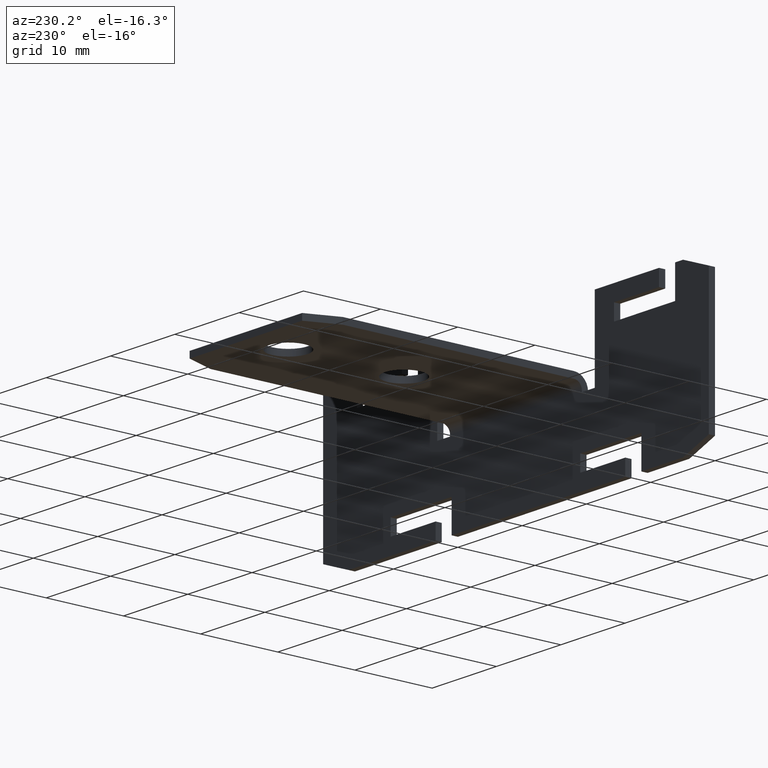
[diagram: clean part render]
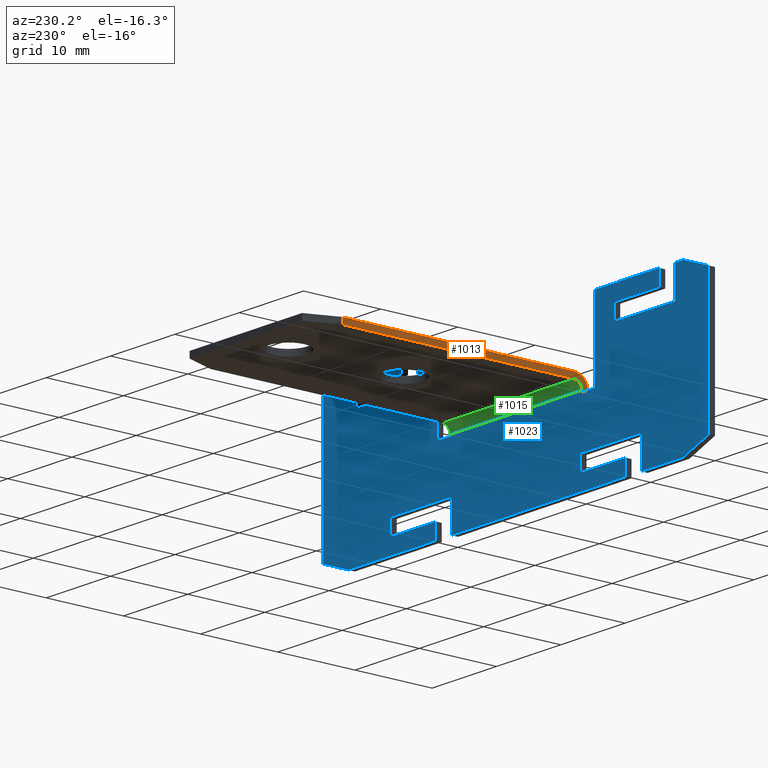
[diagram: same view with three faces highlighted in distinct colors, each labeled with its STEP entity id]
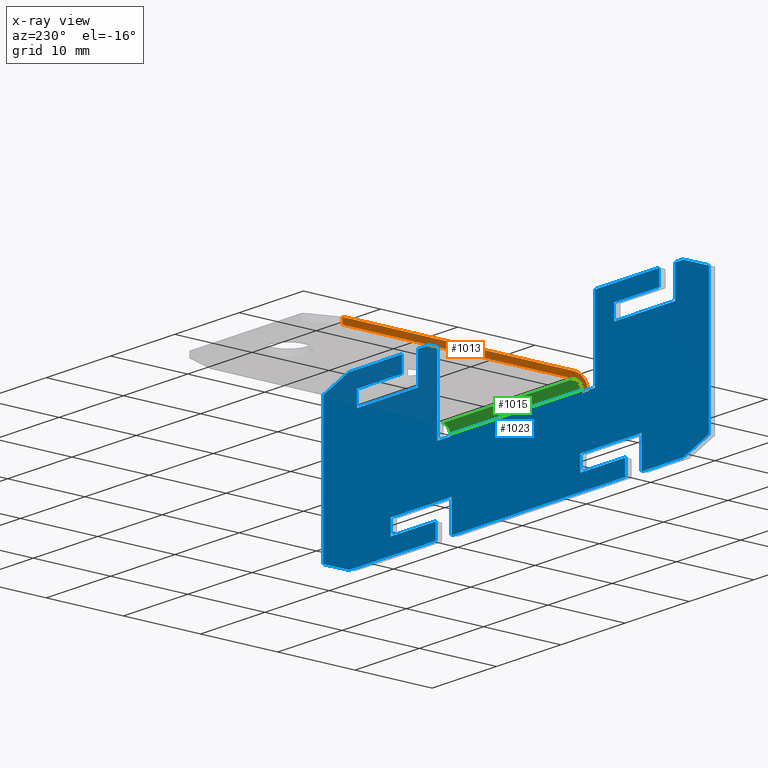
[diagram: x-ray of the same camera — body ghosted, the three highlighted faces saturated]
A machine part, auxiliary view with three faces highlighted in distinct colors.
The next image is the same camera in x-ray (body ghosted, the three faces saturated) — at least one of them is partly hidden behind the body in this view.
Their STEP definitions:

[orange] entity #1013 — the highlighted planar face has unit normal (-1, 0, 0).
#25=CIRCLE('',#1093,1.);
#26=CIRCLE('',#1094,1.8);
#63=FACE_OUTER_BOUND('',#115,.T.);
#115=EDGE_LOOP('',(#819,#820,#821,#822,#823,#824,#825,#826));
#209=LINE('',#1521,#345);
#229=LINE('',#1567,#365);
#235=LINE('',#1579,#371);
#244=LINE('',#1600,#380);
#245=LINE('',#1604,#381);
#246=LINE('',#1605,#382);
#345=VECTOR('',#1234,10.);
#365=VECTOR('',#1272,10.);
#371=VECTOR('',#1282,10.);
#380=VECTOR('',#1301,10.);
#381=VECTOR('',#1304,10.);
#382=VECTOR('',#1305,10.);
#462=VERTEX_POINT('',#1518);
#463=VERTEX_POINT('',#1520);
#479=VERTEX_POINT('',#1564);
#480=VERTEX_POINT('',#1566);
#484=VERTEX_POINT('',#1578);
#491=VERTEX_POINT('',#1599);
#492=VERTEX_POINT('',#1601);
#493=VERTEX_POINT('',#1603);
#577=EDGE_CURVE('',#462,#463,#209,.T.);
#601=EDGE_CURVE('',#479,#480,#229,.T.);
#607=EDGE_CURVE('',#484,#480,#235,.T.);
#618=EDGE_CURVE('',#479,#491,#244,.T.);
#619=EDGE_CURVE('',#492,#491,#25,.T.);
#620=EDGE_CURVE('',#493,#492,#245,.T.);
#621=EDGE_CURVE('',#493,#463,#246,.T.);
#622=EDGE_CURVE('',#462,#484,#26,.T.);
#819=ORIENTED_EDGE('',*,*,#601,.F.);
#820=ORIENTED_EDGE('',*,*,#618,.T.);
#821=ORIENTED_EDGE('',*,*,#619,.F.);
#822=ORIENTED_EDGE('',*,*,#620,.F.);
#823=ORIENTED_EDGE('',*,*,#621,.T.);
#824=ORIENTED_EDGE('',*,*,#577,.F.);
#825=ORIENTED_EDGE('',*,*,#622,.T.);
#826=ORIENTED_EDGE('',*,*,#607,.T.);
#965=PLANE('',#1092);
#1013=ADVANCED_FACE('',(#63),#965,.T.);
#1092=AXIS2_PLACEMENT_3D('',#1598,#1299,#1300);
#1093=AXIS2_PLACEMENT_3D('',#1602,#1302,#1303);
#1094=AXIS2_PLACEMENT_3D('',#1606,#1306,#1307);
#1234=DIRECTION('',(0.,0.,-1.));
#1272=DIRECTION('',(0.,0.,1.));
#1282=DIRECTION('',(0.,1.,6.12323399573677E-17));
#1299=DIRECTION('center_axis',(-1.,0.,0.));
#1300=DIRECTION('ref_axis',(0.,0.,1.));
#1301=DIRECTION('',(0.,-1.,-6.12323399573677E-17));
#1302=DIRECTION('center_axis',(-1.,0.,0.));
#1303=DIRECTION('ref_axis',(1.2335811384724E-15,-1.,0.));
#1304=DIRECTION('',(0.,0.,1.));
#1305=DIRECTION('',(0.,-1.,0.));
#1306=DIRECTION('center_axis',(-1.,0.,0.));
#1307=DIRECTION('ref_axis',(1.2335811384724E-15,-1.,0.));
#1518=CARTESIAN_POINT('',(-10.25,-8.04911692853238E-15,0.25));
#1520=CARTESIAN_POINT('',(-10.25,-7.7715611723761E-15,0.0500000000000012));
#1521=CARTESIAN_POINT('',(-10.25,-7.7715611723761E-15,0.0250000000000006));
#1564=CARTESIAN_POINT('',(-10.25,31.8,1.25));
#1566=CARTESIAN_POINT('',(-10.25,31.8,2.05));
#1567=CARTESIAN_POINT('',(-10.25,31.8,2.05));
#1578=CARTESIAN_POINT('',(-10.25,1.79999999999999,2.05));
#1579=CARTESIAN_POINT('',(-10.25,0.799999999999992,2.05));
#1598=CARTESIAN_POINT('Origin',(-10.25,35.8,2.05));
#1599=CARTESIAN_POINT('',(-10.25,1.79999999999999,1.25));
#1600=CARTESIAN_POINT('',(-10.25,0.799999999999992,1.25));
#1601=CARTESIAN_POINT('',(-10.25,0.799999999999992,0.25));
#1602=CARTESIAN_POINT('Origin',(-10.25,1.79999999999999,0.25));
#1603=CARTESIAN_POINT('',(-10.25,0.799999999999992,0.0500000000000012));
#1604=CARTESIAN_POINT('',(-10.25,0.799999999999992,0.0250000000000006));
#1605=CARTESIAN_POINT('',(-10.25,0.799999999999992,0.0500000000000012));
#1606=CARTESIAN_POINT('Origin',(-10.25,1.79999999999999,0.25));

[blue] entity #1023 — the highlighted planar face has unit normal (0, 1, 0).
#73=FACE_OUTER_BOUND('',#127,.T.);
#127=EDGE_LOOP('',(#867,#868,#869,#870,#871,#872,#873,#874,#875,#876,#877,
#878,#879,#880,#881,#882,#883,#884,#885,#886,#887,#888,#889,#890,#891,#892,
#893,#894,#895,#896,#897,#898,#899,#900,#901,#902,#903,#904,#905,#906));
#135=LINE('',#1370,#271);
#139=LINE('',#1379,#275);
#143=LINE('',#1387,#279);
#146=LINE('',#1393,#282);
#149=LINE('',#1398,#285);
#151=LINE('',#1403,#287);
#155=LINE('',#1411,#291);
#158=LINE('',#1417,#294);
#161=LINE('',#1424,#297);
#165=LINE('',#1431,#301);
#167=LINE('',#1436,#303);
#171=LINE('',#1445,#307);
#175=LINE('',#1453,#311);
#178=LINE('',#1459,#314);
#181=LINE('',#1464,#317);
#183=LINE('',#1469,#319);
#187=LINE('',#1477,#323);
#190=LINE('',#1483,#326);
#193=LINE('',#1490,#329);
#197=LINE('',#1497,#333);
#199=LINE('',#1501,#335);
#202=LINE('',#1507,#338);
#223=LINE('',#1546,#359);
#225=LINE('',#1549,#361);
#242=LINE('',#1594,#378);
#245=LINE('',#1604,#381);
#248=LINE('',#1610,#384);
#249=LINE('',#1614,#385);
#252=LINE('',#1620,#388);
#255=LINE('',#1626,#391);
#257=LINE('',#1629,#393);
#258=LINE('',#1631,#394);
#259=LINE('',#1633,#395);
#260=LINE('',#1636,#396);
#261=LINE('',#1638,#397);
#262=LINE('',#1640,#398);
#263=LINE('',#1641,#399);
#264=LINE('',#1642,#400);
#265=LINE('',#1644,#401);
#266=LINE('',#1645,#402);
#271=VECTOR('',#1116,10.);
#275=VECTOR('',#1122,10.);
#279=VECTOR('',#1128,10.);
#282=VECTOR('',#1133,10.);
#285=VECTOR('',#1138,10.);
#287=VECTOR('',#1142,10.);
#291=VECTOR('',#1148,10.);
#294=VECTOR('',#1153,10.);
#297=VECTOR('',#1158,10.);
#301=VECTOR('',#1164,10.);
#303=VECTOR('',#1168,10.);
#307=VECTOR('',#1174,10.);
#311=VECTOR('',#1180,10.);
#314=VECTOR('',#1185,10.);
#317=VECTOR('',#1190,10.);
#319=VECTOR('',#1194,10.);
#323=VECTOR('',#1200,10.);
#326=VECTOR('',#1205,10.);
#329=VECTOR('',#1210,10.);
#333=VECTOR('',#1216,10.);
#335=VECTOR('',#1220,10.);
#338=VECTOR('',#1225,10.);
#359=VECTOR('',#1250,10.);
#361=VECTOR('',#1254,10.);
#378=VECTOR('',#1295,10.);
#381=VECTOR('',#1304,10.);
#384=VECTOR('',#1313,10.);
#385=VECTOR('',#1318,10.);
#388=VECTOR('',#1323,10.);
#391=VECTOR('',#1328,10.);
#393=VECTOR('',#1332,10.);
#394=VECTOR('',#1335,10.);
#395=VECTOR('',#1338,10.);
#396=VECTOR('',#1341,10.);
#397=VECTOR('',#1342,10.);
#398=VECTOR('',#1343,10.);
#399=VECTOR('',#1344,10.);
#400=VECTOR('',#1345,10.);
#401=VECTOR('',#1346,10.);
#402=VECTOR('',#1347,10.);
#407=VERTEX_POINT('',#1368);
#408=VERTEX_POINT('',#1369);
#411=VERTEX_POINT('',#1377);
#412=VERTEX_POINT('',#1378);
#415=VERTEX_POINT('',#1386);
#417=VERTEX_POINT('',#1392);
#419=VERTEX_POINT('',#1401);
#420=VERTEX_POINT('',#1402);
#423=VERTEX_POINT('',#1410);
#425=VERTEX_POINT('',#1416);
#427=VERTEX_POINT('',#1422);
#428=VERTEX_POINT('',#1423);
#431=VERTEX_POINT('',#1434);
#432=VERTEX_POINT('',#1435);
#435=VERTEX_POINT('',#1443);
#436=VERTEX_POINT('',#1444);
#439=VERTEX_POINT('',#1452);
#441=VERTEX_POINT('',#1458);
#443=VERTEX_POINT('',#1467);
#444=VERTEX_POINT('',#1468);
#447=VERTEX_POINT('',#1476);
#449=VERTEX_POINT('',#1482);
#451=VERTEX_POINT('',#1488);
#452=VERTEX_POINT('',#1489);
#455=VERTEX_POINT('',#1500);
#457=VERTEX_POINT('',#1506);
#473=VERTEX_POINT('',#1545);
#488=VERTEX_POINT('',#1591);
#489=VERTEX_POINT('',#1593);
#492=VERTEX_POINT('',#1601);
#493=VERTEX_POINT('',#1603);
#494=VERTEX_POINT('',#1613);
#495=VERTEX_POINT('',#1617);
#496=VERTEX_POINT('',#1619);
#497=VERTEX_POINT('',#1623);
#498=VERTEX_POINT('',#1625);
#499=VERTEX_POINT('',#1635);
#500=VERTEX_POINT('',#1637);
#501=VERTEX_POINT('',#1639);
#502=VERTEX_POINT('',#1643);
#503=EDGE_CURVE('',#407,#408,#135,.T.);
#507=EDGE_CURVE('',#411,#412,#139,.T.);
#511=EDGE_CURVE('',#412,#415,#143,.T.);
#514=EDGE_CURVE('',#415,#417,#146,.T.);
#517=EDGE_CURVE('',#417,#407,#149,.T.);
#519=EDGE_CURVE('',#419,#420,#151,.T.);
#523=EDGE_CURVE('',#420,#423,#155,.T.);
#526=EDGE_CURVE('',#423,#425,#158,.T.);
#529=EDGE_CURVE('',#427,#428,#161,.T.);
#533=EDGE_CURVE('',#428,#419,#165,.T.);
#535=EDGE_CURVE('',#431,#432,#167,.T.);
#539=EDGE_CURVE('',#435,#436,#171,.T.);
#543=EDGE_CURVE('',#436,#439,#175,.T.);
#546=EDGE_CURVE('',#439,#441,#178,.T.);
#549=EDGE_CURVE('',#441,#431,#181,.T.);
#551=EDGE_CURVE('',#443,#444,#183,.T.);
#555=EDGE_CURVE('',#444,#447,#187,.T.);
#558=EDGE_CURVE('',#447,#449,#190,.T.);
#561=EDGE_CURVE('',#451,#452,#193,.T.);
#565=EDGE_CURVE('',#452,#443,#197,.T.);
#567=EDGE_CURVE('',#455,#411,#199,.T.);
#570=EDGE_CURVE('',#435,#457,#202,.T.);
#591=EDGE_CURVE('',#451,#473,#223,.T.);
#593=EDGE_CURVE('',#427,#449,#225,.T.);
#615=EDGE_CURVE('',#489,#488,#242,.T.);
#620=EDGE_CURVE('',#493,#492,#245,.T.);
#624=EDGE_CURVE('',#492,#489,#248,.T.);
#625=EDGE_CURVE('',#494,#457,#249,.T.);
#628=EDGE_CURVE('',#496,#495,#252,.T.);
#631=EDGE_CURVE('',#498,#497,#255,.T.);
#633=EDGE_CURVE('',#497,#493,#257,.T.);
#634=EDGE_CURVE('',#496,#425,#258,.T.);
#635=EDGE_CURVE('',#494,#495,#259,.T.);
#636=EDGE_CURVE('',#408,#499,#260,.T.);
#637=EDGE_CURVE('',#499,#500,#261,.T.);
#638=EDGE_CURVE('',#500,#501,#262,.T.);
#639=EDGE_CURVE('',#501,#473,#263,.T.);
#640=EDGE_CURVE('',#498,#432,#264,.T.);
#641=EDGE_CURVE('',#488,#502,#265,.T.);
#642=EDGE_CURVE('',#502,#455,#266,.T.);
#867=ORIENTED_EDGE('',*,*,#503,.T.);
#868=ORIENTED_EDGE('',*,*,#636,.T.);
#869=ORIENTED_EDGE('',*,*,#637,.T.);
#870=ORIENTED_EDGE('',*,*,#638,.T.);
#871=ORIENTED_EDGE('',*,*,#639,.T.);
#872=ORIENTED_EDGE('',*,*,#591,.F.);
#873=ORIENTED_EDGE('',*,*,#561,.T.);
#874=ORIENTED_EDGE('',*,*,#565,.T.);
#875=ORIENTED_EDGE('',*,*,#551,.T.);
#876=ORIENTED_EDGE('',*,*,#555,.T.);
#877=ORIENTED_EDGE('',*,*,#558,.T.);
#878=ORIENTED_EDGE('',*,*,#593,.F.);
#879=ORIENTED_EDGE('',*,*,#529,.T.);
#880=ORIENTED_EDGE('',*,*,#533,.T.);
#881=ORIENTED_EDGE('',*,*,#519,.T.);
#882=ORIENTED_EDGE('',*,*,#523,.T.);
#883=ORIENTED_EDGE('',*,*,#526,.T.);
#884=ORIENTED_EDGE('',*,*,#634,.F.);
#885=ORIENTED_EDGE('',*,*,#628,.T.);
#886=ORIENTED_EDGE('',*,*,#635,.F.);
#887=ORIENTED_EDGE('',*,*,#625,.T.);
#888=ORIENTED_EDGE('',*,*,#570,.F.);
#889=ORIENTED_EDGE('',*,*,#539,.T.);
#890=ORIENTED_EDGE('',*,*,#543,.T.);
#891=ORIENTED_EDGE('',*,*,#546,.T.);
#892=ORIENTED_EDGE('',*,*,#549,.T.);
#893=ORIENTED_EDGE('',*,*,#535,.T.);
#894=ORIENTED_EDGE('',*,*,#640,.F.);
#895=ORIENTED_EDGE('',*,*,#631,.T.);
#896=ORIENTED_EDGE('',*,*,#633,.T.);
#897=ORIENTED_EDGE('',*,*,#620,.T.);
#898=ORIENTED_EDGE('',*,*,#624,.T.);
#899=ORIENTED_EDGE('',*,*,#615,.T.);
#900=ORIENTED_EDGE('',*,*,#641,.T.);
#901=ORIENTED_EDGE('',*,*,#642,.T.);
#902=ORIENTED_EDGE('',*,*,#567,.T.);
#903=ORIENTED_EDGE('',*,*,#507,.T.);
#904=ORIENTED_EDGE('',*,*,#511,.T.);
#905=ORIENTED_EDGE('',*,*,#514,.T.);
#906=ORIENTED_EDGE('',*,*,#517,.T.);
#973=PLANE('',#1104);
#1023=ADVANCED_FACE('',(#73),#973,.T.);
#1104=AXIS2_PLACEMENT_3D('',#1634,#1339,#1340);
#1116=DIRECTION('',(0.,0.,1.));
#1122=DIRECTION('',(0.,0.,-1.));
#1128=DIRECTION('',(1.,0.,-1.1686558153949E-16));
#1133=DIRECTION('',(0.,0.,1.));
#1138=DIRECTION('',(-1.,0.,0.));
#1142=DIRECTION('',(0.,0.,1.));
#1148=DIRECTION('',(-1.,0.,2.3373116307898E-16));
#1153=DIRECTION('',(0.,0.,-1.));
#1158=DIRECTION('',(-1.11022302462516E-15,0.,1.));
#1164=DIRECTION('',(1.,0.,0.));
#1168=DIRECTION('',(0.,0.,1.));
#1174=DIRECTION('',(0.,0.,-1.));
#1180=DIRECTION('',(1.,0.,-1.1686558153949E-16));
#1185=DIRECTION('',(0.,0.,1.));
#1190=DIRECTION('',(-1.,0.,0.));
#1194=DIRECTION('',(0.,0.,1.));
#1200=DIRECTION('',(-1.,0.,1.1686558153949E-16));
#1205=DIRECTION('',(0.,0.,-1.));
#1210=DIRECTION('',(0.,0.,1.));
#1216=DIRECTION('',(1.,0.,0.));
#1220=DIRECTION('',(1.,0.,0.));
#1225=DIRECTION('',(-1.,0.,0.));
#1250=DIRECTION('',(1.,0.,0.));
#1254=DIRECTION('',(1.,0.,0.));
#1295=DIRECTION('',(0.,0.,-1.));
#1304=DIRECTION('',(0.,0.,1.));
#1313=DIRECTION('',(1.,0.,0.));
#1318=DIRECTION('',(0.936329177569044,0.,0.351123441588393));
#1323=DIRECTION('',(-0.936329177569045,0.,0.351123441588391));
#1328=DIRECTION('',(4.35381578284375E-16,0.,-1.));
#1332=DIRECTION('',(1.,0.,1.11022302462516E-15));
#1335=DIRECTION('',(1.,0.,0.));
#1338=DIRECTION('',(0.,0.,-1.));
#1339=DIRECTION('center_axis',(0.,1.,0.));
#1340=DIRECTION('ref_axis',(0.,0.,1.));
#1341=DIRECTION('',(1.,0.,0.));
#1342=DIRECTION('',(0.936329177569044,0.,-0.351123441588393));
#1343=DIRECTION('',(0.,0.,-1.));
#1344=DIRECTION('',(-0.936329177569045,0.,-0.351123441588391));
#1345=DIRECTION('',(-1.,0.,0.));
#1346=DIRECTION('',(1.,0.,-1.11022302462516E-15));
#1347=DIRECTION('',(4.35381578284375E-16,0.,1.));
#1368=CARTESIAN_POINT('',(17.75,0.799999999999992,8.25));
#1369=CARTESIAN_POINT('',(17.75,0.799999999999992,10.25));
#1370=CARTESIAN_POINT('',(17.75,0.799999999999992,4.125));
#1377=CARTESIAN_POINT('',(15.25,0.799999999999992,10.25));
#1378=CARTESIAN_POINT('',(15.25,0.799999999999992,6.25));
#1379=CARTESIAN_POINT('',(15.25,0.799999999999992,5.125));
#1386=CARTESIAN_POINT('',(24.75,0.799999999999992,6.25));
#1387=CARTESIAN_POINT('',(7.625,0.799999999999992,6.25));
#1392=CARTESIAN_POINT('',(24.75,0.799999999999992,8.25));
#1393=CARTESIAN_POINT('',(24.75,0.799999999999992,3.125));
#1398=CARTESIAN_POINT('',(12.375,0.799999999999992,8.25));
#1401=CARTESIAN_POINT('',(-10.,0.799999999999992,-8.25));
#1402=CARTESIAN_POINT('',(-10.,0.799999999999992,-6.25));
#1403=CARTESIAN_POINT('',(-10.,0.799999999999992,-4.125));
#1410=CARTESIAN_POINT('',(-19.5,0.799999999999992,-6.25));
#1411=CARTESIAN_POINT('',(-5.,0.799999999999992,-6.25));
#1416=CARTESIAN_POINT('',(-19.5,0.799999999999992,-10.25));
#1417=CARTESIAN_POINT('',(-19.5,0.799999999999992,-3.125));
#1422=CARTESIAN_POINT('',(-17.,0.799999999999992,-10.25));
#1423=CARTESIAN_POINT('',(-17.,0.799999999999992,-8.25));
#1424=CARTESIAN_POINT('',(-17.,0.799999999999992,-5.12500000000001));
#1431=CARTESIAN_POINT('',(-8.5,0.799999999999992,-8.25));
#1434=CARTESIAN_POINT('',(-22.25,0.799999999999992,8.25));
#1435=CARTESIAN_POINT('',(-22.25,0.799999999999992,10.25));
#1436=CARTESIAN_POINT('',(-22.25,0.799999999999992,4.125));
#1443=CARTESIAN_POINT('',(-24.75,0.799999999999992,10.25));
#1444=CARTESIAN_POINT('',(-24.75,0.799999999999992,6.25));
#1445=CARTESIAN_POINT('',(-24.75,0.799999999999992,5.125));
#1452=CARTESIAN_POINT('',(-15.25,0.799999999999992,6.25));
#1453=CARTESIAN_POINT('',(-12.375,0.799999999999992,6.25));
#1458=CARTESIAN_POINT('',(-15.25,0.799999999999992,8.25));
#1459=CARTESIAN_POINT('',(-15.25,0.799999999999992,3.125));
#1464=CARTESIAN_POINT('',(-7.625,0.799999999999992,8.25));
#1467=CARTESIAN_POINT('',(19.5,0.799999999999992,-8.25));
#1468=CARTESIAN_POINT('',(19.5,0.799999999999992,-6.25));
#1469=CARTESIAN_POINT('',(19.5,0.799999999999992,-4.125));
#1476=CARTESIAN_POINT('',(10.,0.799999999999992,-6.25));
#1477=CARTESIAN_POINT('',(9.75,0.799999999999992,-6.25));
#1482=CARTESIAN_POINT('',(10.,0.799999999999992,-10.25));
#1483=CARTESIAN_POINT('',(10.,0.799999999999992,-3.125));
#1488=CARTESIAN_POINT('',(12.5,0.799999999999992,-10.25));
#1489=CARTESIAN_POINT('',(12.5,0.799999999999992,-8.25));
#1490=CARTESIAN_POINT('',(12.5,0.799999999999992,-5.125));
#1497=CARTESIAN_POINT('',(6.25,0.799999999999992,-8.25));
#1500=CARTESIAN_POINT('',(12.25,0.799999999999992,10.25));
#1501=CARTESIAN_POINT('',(0.,0.799999999999992,10.25));
#1506=CARTESIAN_POINT('',(-26.,0.799999999999992,10.25));
#1507=CARTESIAN_POINT('',(0.,0.799999999999992,10.25));
#1545=CARTESIAN_POINT('',(26.,0.799999999999992,-10.25));
#1546=CARTESIAN_POINT('',(0.,0.799999999999992,-10.25));
#1549=CARTESIAN_POINT('',(0.,0.799999999999992,-10.25));
#1591=CARTESIAN_POINT('',(10.25,0.799999999999992,0.0500000000000012));
#1593=CARTESIAN_POINT('',(10.25,0.799999999999992,0.25));
#1594=CARTESIAN_POINT('',(10.25,0.799999999999992,0.0250000000000006));
#1601=CARTESIAN_POINT('',(-10.25,0.799999999999992,0.25));
#1603=CARTESIAN_POINT('',(-10.25,0.799999999999992,0.0500000000000012));
#1604=CARTESIAN_POINT('',(-10.25,0.799999999999992,0.0250000000000006));
#1610=CARTESIAN_POINT('',(5.125,0.799999999999992,0.25));
#1613=CARTESIAN_POINT('',(-30.,0.799999999999992,8.75));
#1614=CARTESIAN_POINT('',(-18.2876712328767,0.799999999999992,13.1421232876712));
#1617=CARTESIAN_POINT('',(-30.,0.799999999999992,-8.75));
#1619=CARTESIAN_POINT('',(-26.,0.799999999999992,-10.25));
#1620=CARTESIAN_POINT('',(-16.2876712328767,0.799999999999992,-13.8921232876712));
#1623=CARTESIAN_POINT('',(-12.25,0.799999999999992,0.0499999999999989));
#1625=CARTESIAN_POINT('',(-12.25,0.799999999999992,10.25));
#1626=CARTESIAN_POINT('',(-12.25,0.799999999999992,5.125));
#1629=CARTESIAN_POINT('',(-6.125,0.799999999999992,0.0500000000000057));
#1631=CARTESIAN_POINT('',(0.,0.799999999999992,-10.25));
#1633=CARTESIAN_POINT('',(-30.,0.799999999999992,0.));
#1634=CARTESIAN_POINT('Origin',(0.,0.799999999999992,0.));
#1635=CARTESIAN_POINT('',(26.,0.799999999999992,10.25));
#1636=CARTESIAN_POINT('',(0.,0.799999999999992,10.25));
#1637=CARTESIAN_POINT('',(30.,0.799999999999992,8.75));
#1638=CARTESIAN_POINT('',(18.2876712328767,0.799999999999992,13.1421232876712));
#1639=CARTESIAN_POINT('',(30.,0.799999999999992,-8.75));
#1640=CARTESIAN_POINT('',(30.,0.799999999999992,0.));
#1641=CARTESIAN_POINT('',(16.2876712328767,0.799999999999992,-13.8921232876712));
#1642=CARTESIAN_POINT('',(0.,0.799999999999992,10.25));
#1643=CARTESIAN_POINT('',(12.25,0.799999999999992,0.0499999999999989));
#1644=CARTESIAN_POINT('',(6.125,0.799999999999992,0.0500000000000057));
#1645=CARTESIAN_POINT('',(12.25,0.799999999999992,5.125));

[green] entity #1015 — the highlighted cylindrical surface (edge-blend (fillet) strip) has radius 1 mm, axis along (-1, 0, 0).
#24=CIRCLE('',#1091,1.);
#25=CIRCLE('',#1093,1.);
#29=CYLINDRICAL_SURFACE('',#1096,1.);
#65=FACE_OUTER_BOUND('',#119,.T.);
#119=EDGE_LOOP('',(#835,#836,#837,#838));
#247=LINE('',#1608,#383);
#248=LINE('',#1610,#384);
#383=VECTOR('',#1310,10.);
#384=VECTOR('',#1313,10.);
#489=VERTEX_POINT('',#1593);
#490=VERTEX_POINT('',#1595);
#491=VERTEX_POINT('',#1599);
#492=VERTEX_POINT('',#1601);
#616=EDGE_CURVE('',#489,#490,#24,.T.);
#619=EDGE_CURVE('',#492,#491,#25,.T.);
#623=EDGE_CURVE('',#491,#490,#247,.T.);
#624=EDGE_CURVE('',#492,#489,#248,.T.);
#835=ORIENTED_EDGE('',*,*,#623,.T.);
#836=ORIENTED_EDGE('',*,*,#616,.F.);
#837=ORIENTED_EDGE('',*,*,#624,.F.);
#838=ORIENTED_EDGE('',*,*,#619,.T.);
#1015=ADVANCED_FACE('',(#65),#29,.F.);
#1091=AXIS2_PLACEMENT_3D('',#1596,#1296,#1297);
#1093=AXIS2_PLACEMENT_3D('',#1602,#1302,#1303);
#1096=AXIS2_PLACEMENT_3D('',#1609,#1311,#1312);
#1296=DIRECTION('center_axis',(-1.,0.,0.));
#1297=DIRECTION('ref_axis',(1.2335811384724E-15,-1.,0.));
#1302=DIRECTION('center_axis',(-1.,0.,0.));
#1303=DIRECTION('ref_axis',(1.2335811384724E-15,-1.,0.));
#1310=DIRECTION('',(1.,1.52479014291346E-15,1.52479014291346E-15));
#1311=DIRECTION('center_axis',(-1.,0.,0.));
#1312=DIRECTION('ref_axis',(1.2335811384724E-15,-1.,0.));
#1313=DIRECTION('',(1.,0.,0.));
#1593=CARTESIAN_POINT('',(10.25,0.799999999999992,0.25));
#1595=CARTESIAN_POINT('',(10.25,1.80000000000002,1.25));
#1596=CARTESIAN_POINT('Origin',(10.25,1.79999999999999,0.25));
#1599=CARTESIAN_POINT('',(-10.25,1.79999999999999,1.25));
#1601=CARTESIAN_POINT('',(-10.25,0.799999999999992,0.25));
#1602=CARTESIAN_POINT('Origin',(-10.25,1.79999999999999,0.25));
#1608=CARTESIAN_POINT('',(10.25,1.80000000000002,1.25000000000003));
#1609=CARTESIAN_POINT('Origin',(0.,1.79999999999999,0.25));
#1610=CARTESIAN_POINT('',(5.125,0.799999999999992,0.25));